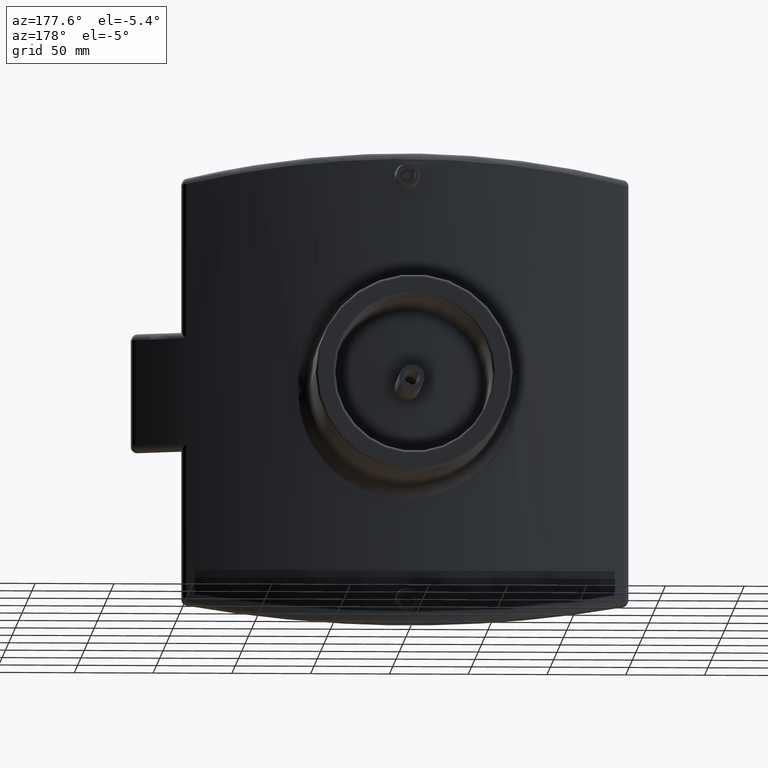
[diagram: clean part render]
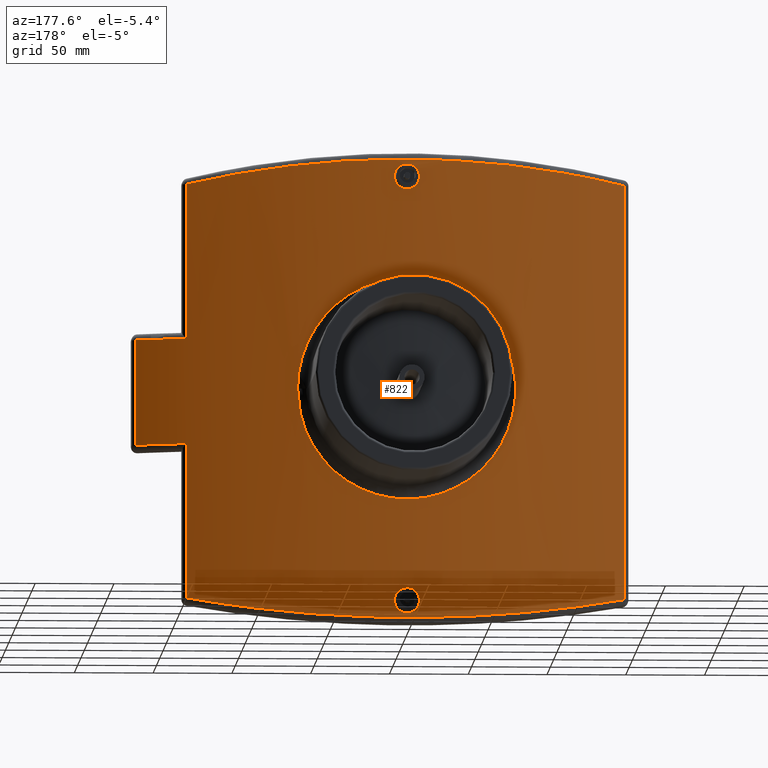
[diagram: same view with one face highlighted and labeled with its STEP entity id]
A machine part, auxiliary view. The second image highlights one B-rep face of the part: STEP entity #822.
In plain terms, the highlighted cylindrical surface (partial cylindrical patch) has radius 415 mm, axis along (0, 0, 1).
Its self-contained STEP definition (entity closure, byte-faithful):
#29=LINE('',#1551,#59);
#30=LINE('',#1555,#60);
#31=LINE('',#1568,#61);
#32=LINE('',#1581,#62);
#59=VECTOR('',#1032,67.);
#60=VECTOR('',#1035,98.2576130740143);
#61=VECTOR('',#1036,263.515226148029);
#62=VECTOR('',#1037,98.2576130740143);
#96=B_SPLINE_CURVE_WITH_KNOTS('',3,(#1526,#1527,#1528,#1529,#1530,#1531,
#1532,#1533,#1534,#1535,#1536,#1537,#1538,#1539,#1540,#1541,#1542,#1543,
#1544,#1545,#1546,#1547),.UNSPECIFIED.,.T.,.F.,(4,1,1,1,1,1,1,1,1,1,1,1,
1,1,1,1,1,1,1,4),(-37.7303981735601,-35.0353697325915,-32.3403412916229,
-30.5436556643105,-28.7469700369982,-26.9502844096858,-25.1535987823734,
-23.356913155061,-21.5602275277486,-19.7635419004362,-17.9668562731238,
-16.1701706458115,-14.3734850184991,-12.5767993911867,-10.7801137638743,
-8.98342813656192,-7.18674250924954,-5.39005688193715,-2.69502844096858,
8.99952530054262E-18),.UNSPECIFIED.);
#97=B_SPLINE_CURVE_WITH_KNOTS('',3,(#1557,#1558,#1559,#1560,#1561,#1562,
#1563,#1564,#1565,#1566),.UNSPECIFIED.,.F.,.F.,(4,1,1,1,1,1,1,4),(-32.6998269534276,
-28.6596766318681,-24.6195263103087,-20.5793759887492,-16.5392256671897,
-12.4990753456303,-8.45892502407081,-4.41877470251134),.UNSPECIFIED.);
#98=B_SPLINE_CURVE_WITH_KNOTS('',3,(#1570,#1571,#1572,#1573,#1574,#1575,
#1576,#1577,#1578,#1579),.UNSPECIFIED.,.F.,.F.,(4,1,1,1,1,1,1,4),(-29.6848180747049,
-25.6446677531454,-21.6045174315859,-17.5643671100264,-13.524216788467,
-9.48406646690747,-5.443916145348,-1.40376582378853),.UNSPECIFIED.);
#99=B_SPLINE_CURVE_WITH_KNOTS('',3,(#1584,#1585,#1586,#1587,#1588,#1589,
#1590,#1591,#1592,#1593,#1594,#1595,#1596,#1597,#1598,#1599,#1600,#1601,
#1602,#1603,#1604,#1605,#1606,#1607,#1608,#1609,#1610,#1611,#1612,#1613,
#1614,#1615,#1616,#1617),.UNSPECIFIED.,.T.,.F.,(4,2,2,2,2,2,2,2,2,2,2,2,
2,2,2,2,4),(0.,0.298775129593704,0.597550259187408,0.896268431011949,1.19498660283649,
1.49370477466103,1.79242294648557,2.09119807607928,2.38997320567298,2.68874833526668,
2.98752346486039,3.28624163668493,3.58495980850947,3.88367798033401,4.18239615215855,
4.48117128175226,4.77994641134596),.UNSPECIFIED.);
#100=B_SPLINE_CURVE_WITH_KNOTS('',3,(#1619,#1620,#1621,#1622,#1623,#1624,
#1625,#1626,#1627,#1628,#1629,#1630,#1631,#1632,#1633,#1634,#1635,#1636,
#1637,#1638,#1639,#1640,#1641,#1642,#1643,#1644,#1645,#1646,#1647,#1648,
#1649,#1650,#1651,#1652),.UNSPECIFIED.,.T.,.F.,(4,2,2,2,2,2,2,2,2,2,2,2,
2,2,2,2,4),(0.,0.298775129593704,0.597550259187409,0.896268431011949,1.19498660283649,
1.49370477466103,1.79242294648557,2.09119807607928,2.38997320567298,2.68874833526668,
2.98752346486039,3.28624163668493,3.58495980850947,3.88367798033401,4.18239615215855,
4.48117128175226,4.77994641134596),.UNSPECIFIED.);
#117=CYLINDRICAL_SURFACE('',#894,415.);
#161=FACE_BOUND('',#257,.T.);
#162=FACE_BOUND('',#258,.T.);
#163=FACE_BOUND('',#259,.T.);
#185=FACE_OUTER_BOUND('',#256,.T.);
#256=EDGE_LOOP('',(#596,#597,#598,#599,#600,#601,#602,#603));
#257=EDGE_LOOP('',(#604));
#258=EDGE_LOOP('',(#605));
#259=EDGE_LOOP('',(#606));
#339=CIRCLE('',#895,415.);
#340=CIRCLE('',#896,415.);
#403=VERTEX_POINT('',#1524);
#404=VERTEX_POINT('',#1549);
#405=VERTEX_POINT('',#1550);
#406=VERTEX_POINT('',#1552);
#407=VERTEX_POINT('',#1554);
#408=VERTEX_POINT('',#1556);
#409=VERTEX_POINT('',#1567);
#410=VERTEX_POINT('',#1569);
#411=VERTEX_POINT('',#1580);
#412=VERTEX_POINT('',#1583);
#413=VERTEX_POINT('',#1618);
#475=EDGE_CURVE('',#403,#403,#96,.T.);
#476=EDGE_CURVE('',#404,#405,#29,.T.);
#477=EDGE_CURVE('',#406,#404,#339,.T.);
#478=EDGE_CURVE('',#407,#406,#30,.T.);
#479=EDGE_CURVE('',#408,#407,#97,.T.);
#480=EDGE_CURVE('',#409,#408,#31,.T.);
#481=EDGE_CURVE('',#410,#409,#98,.T.);
#482=EDGE_CURVE('',#411,#410,#32,.T.);
#483=EDGE_CURVE('',#405,#411,#340,.T.);
#484=EDGE_CURVE('',#412,#412,#99,.T.);
#485=EDGE_CURVE('',#413,#413,#100,.T.);
#596=ORIENTED_EDGE('',*,*,#476,.F.);
#597=ORIENTED_EDGE('',*,*,#477,.F.);
#598=ORIENTED_EDGE('',*,*,#478,.F.);
#599=ORIENTED_EDGE('',*,*,#479,.F.);
#600=ORIENTED_EDGE('',*,*,#480,.F.);
#601=ORIENTED_EDGE('',*,*,#481,.F.);
#602=ORIENTED_EDGE('',*,*,#482,.F.);
#603=ORIENTED_EDGE('',*,*,#483,.F.);
#604=ORIENTED_EDGE('',*,*,#484,.T.);
#605=ORIENTED_EDGE('',*,*,#485,.T.);
#606=ORIENTED_EDGE('',*,*,#475,.F.);
#822=ADVANCED_FACE('',(#185,#161,#162,#163),#117,.T.);
#894=AXIS2_PLACEMENT_3D('',#1548,#1030,#1031);
#895=AXIS2_PLACEMENT_3D('',#1553,#1033,#1034);
#896=AXIS2_PLACEMENT_3D('',#1582,#1038,#1039);
#1030=DIRECTION('center_axis',(0.,0.,1.));
#1031=DIRECTION('ref_axis',(1.,0.,0.));
#1032=DIRECTION('',(0.,0.,1.));
#1033=DIRECTION('center_axis',(0.,0.,-1.));
#1034=DIRECTION('ref_axis',(0.379837875455629,0.925053073271666,0.));
#1035=DIRECTION('',(0.,0.,1.));
#1036=DIRECTION('',(0.,0.,-1.));
#1037=DIRECTION('',(0.,0.,1.));
#1038=DIRECTION('center_axis',(0.,0.,1.));
#1039=DIRECTION('ref_axis',(0.379837875455629,0.925053073271666,0.));
#1524=CARTESIAN_POINT('',(69.1666666666667,409.195518331057,-1.11022302462516E-15));
#1526=CARTESIAN_POINT('Ctrl Pts',(69.1695649650049,409.193015205283,1.49360898422701E-6));
#1527=CARTESIAN_POINT('Ctrl Pts',(69.169611615787,409.19298809269,-10.5618263450312));
#1528=CARTESIAN_POINT('Ctrl Pts',(64.4261449907189,410.038957281257,-31.6844928857989));
#1529=CARTESIAN_POINT('Ctrl Pts',(46.8063091001513,412.532717326803,-54.1609795455459));
#1530=CARTESIAN_POINT('Ctrl Pts',(25.6859188487985,414.357957803893,-66.5965403779434));
#1531=CARTESIAN_POINT('Ctrl Pts',(5.26097858091858,415.144707730154,-71.3658764436413));
#1532=CARTESIAN_POINT('Ctrl Pts',(-15.6528745134179,414.874000199568,-69.7617077385065));
#1533=CARTESIAN_POINT('Ctrl Pts',(-35.1311494939277,413.643812015735,-61.9541431885034));
#1534=CARTESIAN_POINT('Ctrl Pts',(-51.4580604890789,411.879750492258,-48.6744257167819));
#1535=CARTESIAN_POINT('Ctrl Pts',(-63.2367964660311,410.185838207878,-31.0851616737029));
#1536=CARTESIAN_POINT('Ctrl Pts',(-69.4235584071228,409.153014791925,-10.6892231902133));
#1537=CARTESIAN_POINT('Ctrl Pts',(-69.4233641666976,409.153226779282,10.6876331472191));
#1538=CARTESIAN_POINT('Ctrl Pts',(-63.2368866145456,410.186121264659,31.0833481933344));
#1539=CARTESIAN_POINT('Ctrl Pts',(-51.4585241617467,411.87945013283,48.6733008593293));
#1540=CARTESIAN_POINT('Ctrl Pts',(-35.1326229641083,413.643830118493,61.9536071995416));
#1541=CARTESIAN_POINT('Ctrl Pts',(-15.6544418176996,414.874257426747,69.7620273827748));
#1542=CARTESIAN_POINT('Ctrl Pts',(5.25884266923419,415.143973219578,71.3645651201494));
#1543=CARTESIAN_POINT('Ctrl Pts',(25.6850820551761,414.358535257223,66.5979961610988));
#1544=CARTESIAN_POINT('Ctrl Pts',(46.8049945878491,412.532615490486,54.161254628413));
#1545=CARTESIAN_POINT('Ctrl Pts',(64.4258650860265,410.039119956814,31.6864741460422));
#1546=CARTESIAN_POINT('Ctrl Pts',(69.1695183142228,409.193042317876,10.5618293322492));
#1547=CARTESIAN_POINT('Ctrl Pts',(69.1695649650049,409.193015205283,1.49360898422701E-6));
#1548=CARTESIAN_POINT('Origin',(0.,0.,0.));
#1549=CARTESIAN_POINT('',(170.897201946476,378.178722784434,-33.5));
#1550=CARTESIAN_POINT('',(170.897201946476,378.178722784434,33.5));
#1551=CARTESIAN_POINT('',(170.897201946476,378.178722784434,0.));
#1552=CARTESIAN_POINT('',(139.09063260341,390.997181475753,-33.5));
#1553=CARTESIAN_POINT('Origin',(0.,0.,-33.5));
#1554=CARTESIAN_POINT('',(139.09063260341,390.997181475753,-131.757613074014));
#1555=CARTESIAN_POINT('',(139.09063260341,390.997181475753,0.));
#1556=CARTESIAN_POINT('',(-139.090632603403,390.997181475756,-131.757613074014));
#1557=CARTESIAN_POINT('Ctrl Pts',(-139.090632603403,390.997181475756,-131.757613074014));
#1558=CARTESIAN_POINT('Ctrl Pts',(-126.519711970547,395.469073821966,-134.359866740379));
#1559=CARTESIAN_POINT('Ctrl Pts',(-100.83419503984,403.23924471547,-138.938929959962));
#1560=CARTESIAN_POINT('Ctrl Pts',(-61.0304030310358,411.160253956869,-143.680393743336));
#1561=CARTESIAN_POINT('Ctrl Pts',(-20.4298369698615,415.166726763725,-146.100589001554));
#1562=CARTESIAN_POINT('Ctrl Pts',(20.4299098442966,415.167026397045,-146.100938434617));
#1563=CARTESIAN_POINT('Ctrl Pts',(61.0289804996759,411.160089339475,-143.680141816065));
#1564=CARTESIAN_POINT('Ctrl Pts',(100.833542230267,403.239687862737,-138.939302310592));
#1565=CARTESIAN_POINT('Ctrl Pts',(126.519619840074,395.469106595823,-134.359885811924));
#1566=CARTESIAN_POINT('Ctrl Pts',(139.09063260341,390.997181475753,-131.757613074014));
#1567=CARTESIAN_POINT('',(-139.090632603403,390.997181475756,131.757613074014));
#1568=CARTESIAN_POINT('',(-139.090632603403,390.997181475756,0.));
#1569=CARTESIAN_POINT('',(139.09063260341,390.997181475753,131.757613074014));
#1570=CARTESIAN_POINT('Ctrl Pts',(139.09063260341,390.997181475753,131.757613074014));
#1571=CARTESIAN_POINT('Ctrl Pts',(126.519619840078,395.469106595822,134.359885811923));
#1572=CARTESIAN_POINT('Ctrl Pts',(100.833542230235,403.239687862746,138.939302310598));
#1573=CARTESIAN_POINT('Ctrl Pts',(61.0289804996453,411.160089339478,143.680141816067));
#1574=CARTESIAN_POINT('Ctrl Pts',(20.4299098443042,415.167026397045,146.100938434617));
#1575=CARTESIAN_POINT('Ctrl Pts',(-20.4298369698659,415.166726763724,146.100589001554));
#1576=CARTESIAN_POINT('Ctrl Pts',(-61.0304030310194,411.160253956872,143.680393743337));
#1577=CARTESIAN_POINT('Ctrl Pts',(-100.834195039831,403.239244715472,138.938929959963));
#1578=CARTESIAN_POINT('Ctrl Pts',(-126.519711970523,395.469073821974,134.359866740384));
#1579=CARTESIAN_POINT('Ctrl Pts',(-139.090632603403,390.997181475756,131.757613074014));
#1580=CARTESIAN_POINT('',(139.09063260341,390.997181475753,33.5));
#1581=CARTESIAN_POINT('',(139.09063260341,390.997181475753,0.));
#1582=CARTESIAN_POINT('Origin',(0.,0.,33.5));
#1583=CARTESIAN_POINT('',(7.93401572818936,414.924151375194,-135.));
#1584=CARTESIAN_POINT('Ctrl Pts',(-7.93401572818936,414.924151375194,-135.));
#1585=CARTESIAN_POINT('Ctrl Pts',(-7.93401572818936,414.924151375194,-135.995917098646));
#1586=CARTESIAN_POINT('Ctrl Pts',(-7.73470400469193,414.9281125086,-137.058103060101));
#1587=CARTESIAN_POINT('Ctrl Pts',(-6.92440853015817,414.942425840419,-139.011749295536));
#1588=CARTESIAN_POINT('Ctrl Pts',(-6.31343100974274,414.952572261676,-139.903213655927));
#1589=CARTESIAN_POINT('Ctrl Pts',(-4.90424354849146,414.971619323028,-141.310507185308));
#1590=CARTESIAN_POINT('Ctrl Pts',(-4.01216256929392,414.98175548306,-141.920215654625));
#1591=CARTESIAN_POINT('Ctrl Pts',(-2.05790444549987,414.996048007151,-142.728650252871));
#1592=CARTESIAN_POINT('Ctrl Pts',(-0.995727239415136,415.,-142.927379833375));
#1593=CARTESIAN_POINT('Ctrl Pts',(0.995727239415137,415.,-142.927379833375));
#1594=CARTESIAN_POINT('Ctrl Pts',(2.05790444549986,414.996048007151,-142.728650252871));
#1595=CARTESIAN_POINT('Ctrl Pts',(4.01216256929391,414.98175548306,-141.920215654625));
#1596=CARTESIAN_POINT('Ctrl Pts',(4.90424354849146,414.971619323028,-141.310507185308));
#1597=CARTESIAN_POINT('Ctrl Pts',(6.31343100974274,414.952572261676,-139.903213655927));
#1598=CARTESIAN_POINT('Ctrl Pts',(6.92440853015817,414.942425840419,-139.011749295536));
#1599=CARTESIAN_POINT('Ctrl Pts',(7.73470400469193,414.9281125086,-137.058103060101));
#1600=CARTESIAN_POINT('Ctrl Pts',(7.93401572818937,414.924151375194,-135.995917098646));
#1601=CARTESIAN_POINT('Ctrl Pts',(7.93401572818937,414.924151375194,-134.004082901354));
#1602=CARTESIAN_POINT('Ctrl Pts',(7.73470400469193,414.9281125086,-132.941896939899));
#1603=CARTESIAN_POINT('Ctrl Pts',(6.92440853015817,414.942425840419,-130.988250704464));
#1604=CARTESIAN_POINT('Ctrl Pts',(6.31343100974273,414.952572261676,-130.096786344073));
#1605=CARTESIAN_POINT('Ctrl Pts',(4.90424354849146,414.971619323028,-128.689492814692));
#1606=CARTESIAN_POINT('Ctrl Pts',(4.01216256929391,414.98175548306,-128.079784345375));
#1607=CARTESIAN_POINT('Ctrl Pts',(2.05790444549987,414.996048007151,-127.271349747129));
#1608=CARTESIAN_POINT('Ctrl Pts',(0.995727239415136,415.,-127.072620166625));
#1609=CARTESIAN_POINT('Ctrl Pts',(-0.995727239415135,415.,-127.072620166625));
#1610=CARTESIAN_POINT('Ctrl Pts',(-2.05790444549987,414.996048007151,-127.271349747129));
#1611=CARTESIAN_POINT('Ctrl Pts',(-4.01216256929392,414.98175548306,-128.079784345375));
#1612=CARTESIAN_POINT('Ctrl Pts',(-4.90424354849146,414.971619323028,-128.689492814692));
#1613=CARTESIAN_POINT('Ctrl Pts',(-6.31343100974274,414.952572261676,-130.096786344073));
#1614=CARTESIAN_POINT('Ctrl Pts',(-6.92440853015817,414.942425840419,-130.988250704464));
#1615=CARTESIAN_POINT('Ctrl Pts',(-7.73470400469193,414.9281125086,-132.941896939899));
#1616=CARTESIAN_POINT('Ctrl Pts',(-7.93401572818936,414.924151375194,-134.004082901354));
#1617=CARTESIAN_POINT('Ctrl Pts',(-7.93401572818936,414.924151375194,-135.));
#1618=CARTESIAN_POINT('',(7.93401572818936,414.924151375194,135.));
#1619=CARTESIAN_POINT('Ctrl Pts',(7.93401572818936,414.924151375194,135.));
#1620=CARTESIAN_POINT('Ctrl Pts',(7.93401572818936,414.924151375194,135.995917098646));
#1621=CARTESIAN_POINT('Ctrl Pts',(7.73470400469193,414.9281125086,137.058103060101));
#1622=CARTESIAN_POINT('Ctrl Pts',(6.92440853015817,414.942425840419,139.011749295536));
#1623=CARTESIAN_POINT('Ctrl Pts',(6.31343100974273,414.952572261676,139.903213655927));
#1624=CARTESIAN_POINT('Ctrl Pts',(4.90424354849146,414.971619323028,141.310507185308));
#1625=CARTESIAN_POINT('Ctrl Pts',(4.01216256929392,414.98175548306,141.920215654625));
#1626=CARTESIAN_POINT('Ctrl Pts',(2.05790444549987,414.996048007151,142.728650252871));
#1627=CARTESIAN_POINT('Ctrl Pts',(0.995727239415137,415.,142.927379833375));
#1628=CARTESIAN_POINT('Ctrl Pts',(-0.995727239415136,415.,142.927379833375));
#1629=CARTESIAN_POINT('Ctrl Pts',(-2.05790444549986,414.996048007151,142.728650252871));
#1630=CARTESIAN_POINT('Ctrl Pts',(-4.01216256929391,414.98175548306,141.920215654625));
#1631=CARTESIAN_POINT('Ctrl Pts',(-4.90424354849146,414.971619323028,141.310507185308));
#1632=CARTESIAN_POINT('Ctrl Pts',(-6.31343100974274,414.952572261676,139.903213655927));
#1633=CARTESIAN_POINT('Ctrl Pts',(-6.92440853015817,414.942425840419,139.011749295536));
#1634=CARTESIAN_POINT('Ctrl Pts',(-7.73470400469193,414.9281125086,137.058103060101));
#1635=CARTESIAN_POINT('Ctrl Pts',(-7.93401572818937,414.924151375194,135.995917098646));
#1636=CARTESIAN_POINT('Ctrl Pts',(-7.93401572818937,414.924151375194,134.004082901354));
#1637=CARTESIAN_POINT('Ctrl Pts',(-7.73470400469193,414.9281125086,132.941896939899));
#1638=CARTESIAN_POINT('Ctrl Pts',(-6.92440853015818,414.942425840419,130.988250704464));
#1639=CARTESIAN_POINT('Ctrl Pts',(-6.31343100974273,414.952572261676,130.096786344073));
#1640=CARTESIAN_POINT('Ctrl Pts',(-4.90424354849146,414.971619323028,128.689492814692));
#1641=CARTESIAN_POINT('Ctrl Pts',(-4.01216256929392,414.98175548306,128.079784345375));
#1642=CARTESIAN_POINT('Ctrl Pts',(-2.05790444549988,414.996048007151,127.271349747129));
#1643=CARTESIAN_POINT('Ctrl Pts',(-0.995727239415137,415.,127.072620166625));
#1644=CARTESIAN_POINT('Ctrl Pts',(0.995727239415135,415.,127.072620166625));
#1645=CARTESIAN_POINT('Ctrl Pts',(2.05790444549987,414.996048007151,127.271349747129));
#1646=CARTESIAN_POINT('Ctrl Pts',(4.01216256929392,414.98175548306,128.079784345375));
#1647=CARTESIAN_POINT('Ctrl Pts',(4.90424354849146,414.971619323028,128.689492814692));
#1648=CARTESIAN_POINT('Ctrl Pts',(6.31343100974274,414.952572261676,130.096786344073));
#1649=CARTESIAN_POINT('Ctrl Pts',(6.92440853015817,414.942425840419,130.988250704464));
#1650=CARTESIAN_POINT('Ctrl Pts',(7.73470400469193,414.9281125086,132.941896939899));
#1651=CARTESIAN_POINT('Ctrl Pts',(7.93401572818936,414.924151375194,134.004082901354));
#1652=CARTESIAN_POINT('Ctrl Pts',(7.93401572818936,414.924151375194,135.));